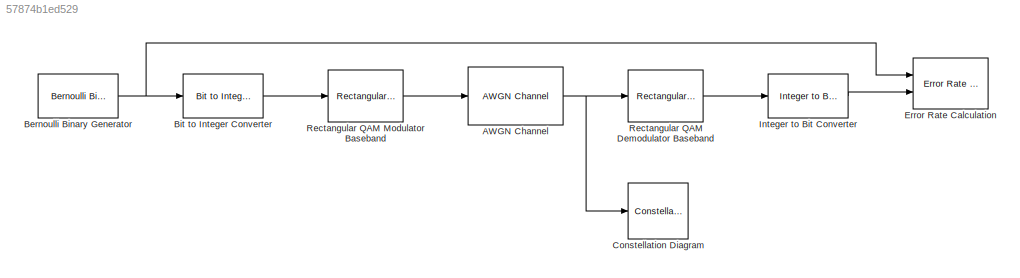
MODEL slx_57874b1ed529
KIND model
CONFIG AbsTol = auto
CONFIG EnableMultiTasking = off
CONFIG FixedStep = auto
CONFIG MaxStep = auto
CONFIG MinStep = auto
CONFIG RelTol = 1e-3
CONFIG SampleTimeConstraint = Unconstrained
CONFIG SolverName = VariableStepAuto
CONFIG StartTime = 0.0
CONFIG StopTime = 10.0
BLOCK [Reference] AWGN Channel  REF=commchan3/AWGN
Channel
  Ports = [1, 1]
  SourceBlock = commchan3/AWGN\nChannel
  SourceProductBaseCode = CM
  SourceType = AWGN Channel
  UserDataPersistent = on
BLOCK [Reference] Bernoulli Binary Generator  REF=commrandsrc3/Bernoulli Binary
Generator
  Ports = [0, 1]
  SourceBlock = commrandsrc3/Bernoulli Binary\nGenerator
  SourceProductBaseCode = CM
  SourceType = Bernoulli Binary Generator
BLOCK [Reference] Bit to Integer Converter  REF=commutil2/Bit to Integer
Converter
  Ports = [1, 1]
  SourceBlock = commutil2/Bit to Integer\nConverter
  SourceProductBaseCode = CM
  SourceType = Bit to Integer Converter
BLOCK [ConstellationDiagram] Constellation Diagram
  Ports = [1]
  ScopeSpecificationString = comm.scopes.ConstellationDiagramBlockCfg('CurrentConfiguration', extmgr.ConfigurationSet(extmgr.Configuration('Core','General UI',true),extmgr.Configuration('Core','Source UI',true),extmgr.Configuration('Sources','WiredSimulink',true),extmgr.Configuration('Visuals','Constellation',true,'LineProperties',struct('DisplayName','','Color',[1 1 0.0666666666666667],'LineStyle','none','LineWidth',0.5,'Mar...<+678ch>
BLOCK [Reference] Error Rate Calculation  REF=commsink2/Error Rate
Calculation
  Ports = [2]
  SourceBlock = commsink2/Error Rate\nCalculation
  SourceProductBaseCode = CM
  SourceType = Error Rate Calculation
BLOCK [Reference] Integer to Bit Converter  REF=commutil2/Integer to Bit
Converter
  Ports = [1, 1]
  SourceBlock = commutil2/Integer to Bit\nConverter
  SourceProductBaseCode = CM
  SourceType = Integer to Bit Converter
BLOCK [Reference] Rectangular QAM Demodulator Baseband  REF=commdigbbndam3/Rectangular QAM
Demodulator
Baseband
  Ports = [1, 1]
  SourceBlock = commdigbbndam3/Rectangular QAM\nDemodulator\nBaseband
  SourceProductBaseCode = CM
  SourceType = Rectangular QAM Demodulator Baseband
BLOCK [Reference] Rectangular QAM Modulator Baseband  REF=commdigbbndam3/Rectangular QAM
Modulator
Baseband
  Ports = [1, 1]
  SourceBlock = commdigbbndam3/Rectangular QAM\nModulator\nBaseband
  SourceProductBaseCode = CM
  SourceType = Rectangular QAM Modulator Baseband
NET AWGN Channel:1 -> Constellation Diagram:1, Rectangular QAM Demodulator Baseband:1
NET Bernoulli Binary Generator:1 -> Bit to Integer Converter:1, Error Rate Calculation:1
LINE Bit to Integer Converter:1 -> Rectangular QAM Modulator Baseband:1
LINE Integer to Bit Converter:1 -> Error Rate Calculation:2
LINE Rectangular QAM Demodulator Baseband:1 -> Integer to Bit Converter:1
LINE Rectangular QAM Modulator Baseband:1 -> AWGN Channel:1
note: NET lines group one-source signal fan-out (src -> all destinations, sorted); 1:1 wires keep LINE
